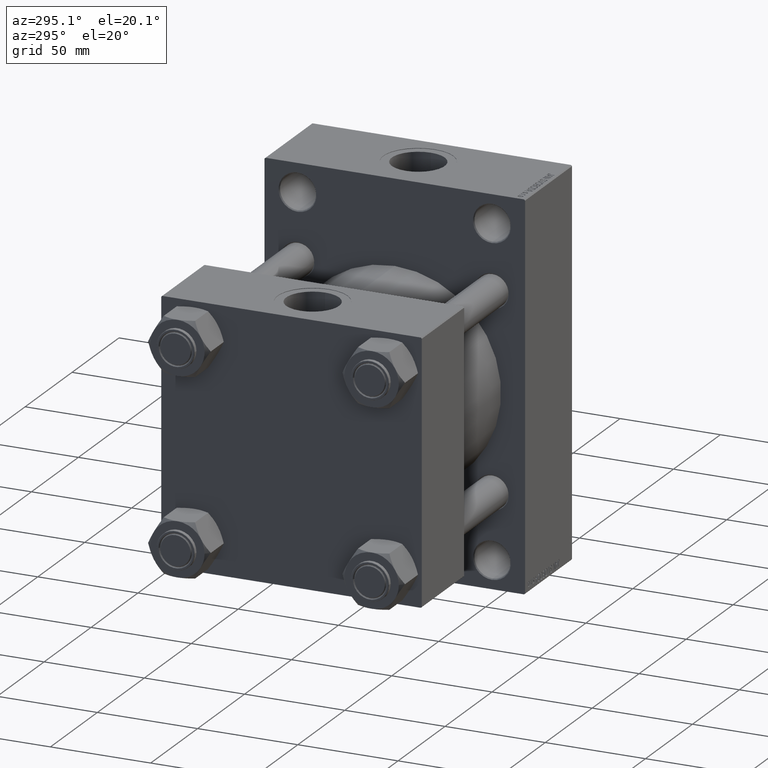
[diagram: clean part render]
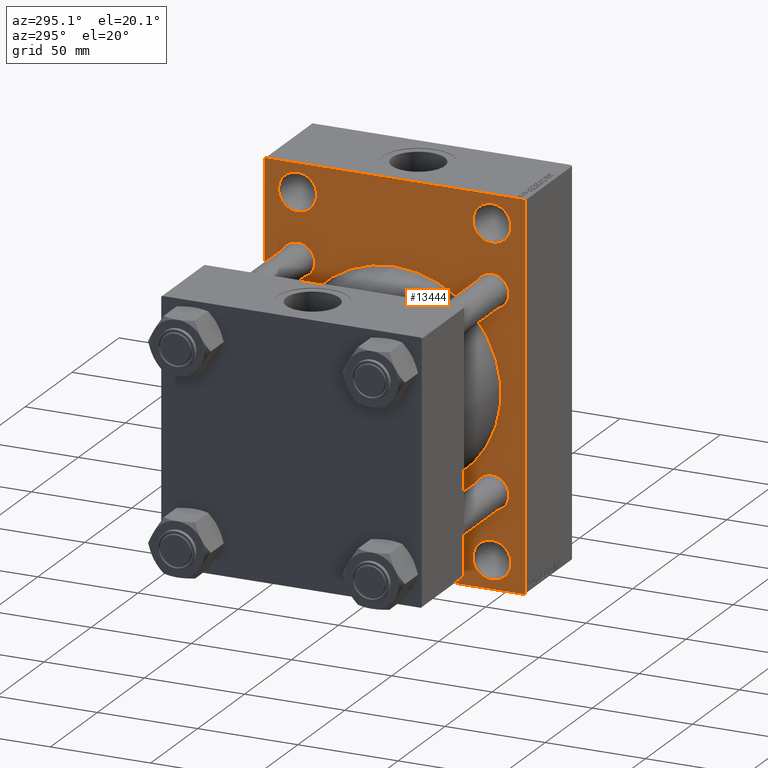
[diagram: same view with one face highlighted and labeled with its STEP entity id]
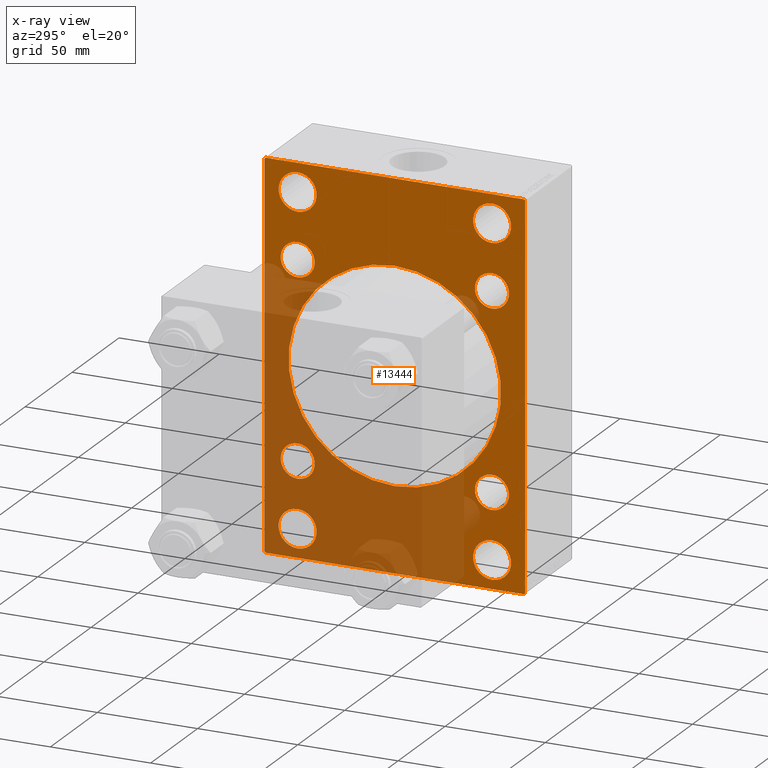
[diagram: x-ray of the same camera — body ghosted, the highlighted face saturated]
A machine part, auxiliary view. The second image highlights one B-rep face of the part: STEP entity #13444.
The next image is the same camera in x-ray: the body ghosted, the highlighted face saturated — about 43% of this face is hidden behind the body in this view.
In plain terms, the highlighted planar face has unit normal (-1, 0, 0).
Its self-contained STEP definition (entity closure, byte-faithful):
#198 = ORIENTED_EDGE ( 'NONE', *, *, #5870, .T. ) ;
#305 = CIRCLE ( 'NONE', #33439, 8.500000000000007105 ) ;
#425 = DIRECTION ( 'NONE',  ( 0.000000000000000000, -1.000000000000000000, -1.067522139062650425E-16 ) ) ;
#552 = ORIENTED_EDGE ( 'NONE', *, *, #39208, .T. ) ;
#1400 = VERTEX_POINT ( 'NONE', #17239 ) ;
#1447 = VERTEX_POINT ( 'NONE', #24719 ) ;
#1671 = FACE_BOUND ( 'NONE', #29778, .T. ) ;
#1723 = CARTESIAN_POINT ( 'NONE',  ( 110.0000000000000000, 48.50000000000000711, 90.50000000000004263 ) ) ;
#1732 = ORIENTED_EDGE ( 'NONE', *, *, #46637, .T. ) ;
#2248 = DIRECTION ( 'NONE',  ( 0.000000000000000000, 0.000000000000000000, 1.000000000000000000 ) ) ;
#2267 = LINE ( 'NONE', #16973, #31966 ) ;
#2317 = EDGE_LOOP ( 'NONE', ( #198, #7697 ) ) ;
#2442 = VERTEX_POINT ( 'NONE', #27324 ) ;
#2547 = CIRCLE ( 'NONE', #37235, 9.500000000000035527 ) ;
#3224 = EDGE_CURVE ( 'NONE', #39595, #29305, #37398, .T. ) ;
#3294 = DIRECTION ( 'NONE',  ( 0.000000000000000000, 0.000000000000000000, 1.000000000000000000 ) ) ;
#3350 = DIRECTION ( 'NONE',  ( 1.000000000000000000, -0.000000000000000000, 0.000000000000000000 ) ) ;
#3498 = ORIENTED_EDGE ( 'NONE', *, *, #43275, .T. ) ;
#3780 = CARTESIAN_POINT ( 'NONE',  ( 110.0000000000000000, -48.44999999999999574, -48.45000000000003126 ) ) ;
#4561 = DIRECTION ( 'NONE',  ( -0.000000000000000000, 0.7071067811865573427, 0.7071067811865376918 ) ) ;
#4786 = EDGE_LOOP ( 'NONE', ( #46320, #15660 ) ) ;
#5043 = DIRECTION ( 'NONE',  ( 0.000000000000000000, -0.7071067811865279218, 0.7071067811865671127 ) ) ;
#5076 = VERTEX_POINT ( 'NONE', #43194 ) ;
#5552 = AXIS2_PLACEMENT_3D ( 'NONE', #16484, #13575, #9471 ) ;
#5638 = VERTEX_POINT ( 'NONE', #25683 ) ;
#5870 = EDGE_CURVE ( 'NONE', #36031, #6565, #2547, .T. ) ;
#5988 = EDGE_CURVE ( 'NONE', #7825, #24256, #22595, .T. ) ;
#6565 = VERTEX_POINT ( 'NONE', #32444 ) ;
#6591 = DIRECTION ( 'NONE',  ( 0.000000000000000000, 0.000000000000000000, 1.000000000000000000 ) ) ;
#6609 = CARTESIAN_POINT ( 'NONE',  ( 110.0000000000000000, -64.50000000000002842, 94.99999999999997158 ) ) ;
#6708 = EDGE_CURVE ( 'NONE', #31724, #17610, #40997, .T. ) ;
#6915 = CIRCLE ( 'NONE', #25399, 53.00000000000000711 ) ;
#7167 = DIRECTION ( 'NONE',  ( 0.000000000000000000, 0.000000000000000000, 1.000000000000000000 ) ) ;
#7356 = DIRECTION ( 'NONE',  ( 0.000000000000000000, 0.000000000000000000, 1.000000000000000000 ) ) ;
#7575 = CARTESIAN_POINT ( 'NONE',  ( 110.0000000000000000, -2.602085213965210642E-15, 53.00000000000000711 ) ) ;
#7697 = ORIENTED_EDGE ( 'NONE', *, *, #21685, .T. ) ;
#7776 = VERTEX_POINT ( 'NONE', #1723 ) ;
#7825 = VERTEX_POINT ( 'NONE', #20760 ) ;
#7898 = ORIENTED_EDGE ( 'NONE', *, *, #31410, .T. ) ;
#7912 = EDGE_CURVE ( 'NONE', #2442, #18151, #39504, .T. ) ;
#8181 = CARTESIAN_POINT ( 'NONE',  ( 110.0000000000000000, -79.74999999999911893, 79.75000000000133582 ) ) ;
#8216 = EDGE_LOOP ( 'NONE', ( #33969, #552 ) ) ;
#8695 = DIRECTION ( 'NONE',  ( 1.000000000000000000, -0.000000000000000000, 0.000000000000000000 ) ) ;
#8898 = FACE_BOUND ( 'NONE', #9372, .T. ) ;
#9139 = FACE_BOUND ( 'NONE', #2317, .T. ) ;
#9243 = DIRECTION ( 'NONE',  ( 1.000000000000000000, -0.000000000000000000, 0.000000000000000000 ) ) ;
#9372 = EDGE_LOOP ( 'NONE', ( #24177, #33265 ) ) ;
#9471 = DIRECTION ( 'NONE',  ( 0.000000000000000000, 0.000000000000000000, 1.000000000000000000 ) ) ;
#9556 = DIRECTION ( 'NONE',  ( 0.000000000000000000, 0.000000000000000000, 1.000000000000000000 ) ) ;
#9633 = EDGE_CURVE ( 'NONE', #27969, #35474, #27987, .T. ) ;
#10623 = EDGE_CURVE ( 'NONE', #24256, #7825, #305, .T. ) ;
#11018 = CARTESIAN_POINT ( 'NONE',  ( 110.0000000000000000, 48.50000000000000711, -81.00000000000001421 ) ) ;
#11045 = CARTESIAN_POINT ( 'NONE',  ( 110.0000000000000000, 64.99999999999998579, -95.00000000000001421 ) ) ;
#11107 = CARTESIAN_POINT ( 'NONE',  ( 110.0000000000000000, -48.44999999999999574, 48.45000000000003126 ) ) ;
#11432 = EDGE_LOOP ( 'NONE', ( #7898, #23371 ) ) ;
#11765 = EDGE_CURVE ( 'NONE', #1400, #33826, #18303, .T. ) ;
#11973 = AXIS2_PLACEMENT_3D ( 'NONE', #30466, #41346, #33622 ) ;
#12002 = CARTESIAN_POINT ( 'NONE',  ( 110.0000000000000000, 48.45000000000000995, -39.95000000000000284 ) ) ;
#12286 = CIRCLE ( 'NONE', #23861, 8.500000000000007105 ) ;
#12555 = DIRECTION ( 'NONE',  ( 0.000000000000000000, 0.000000000000000000, 1.000000000000000000 ) ) ;
#12702 = DIRECTION ( 'NONE',  ( 1.000000000000000000, -0.000000000000000000, 0.000000000000000000 ) ) ;
#12998 = FACE_OUTER_BOUND ( 'NONE', #42912, .T. ) ;
#13315 = DIRECTION ( 'NONE',  ( -0.000000000000000000, -0.7071067811865376918, -0.7071067811865573427 ) ) ;
#13413 = EDGE_CURVE ( 'NONE', #33826, #41772, #34718, .T. ) ;
#13444 = ADVANCED_FACE ( 'NONE', ( #31081, #9139, #17082, #27710, #1671, #31315, #8898, #13465, #28167, #12998 ), #19758, .T. ) ;
#13465 = FACE_BOUND ( 'NONE', #8216, .T. ) ;
#13575 = DIRECTION ( 'NONE',  ( 1.000000000000000000, -0.000000000000000000, 0.000000000000000000 ) ) ;
#13589 = AXIS2_PLACEMENT_3D ( 'NONE', #28114, #12702, #42854 ) ;
#13635 = CIRCLE ( 'NONE', #44477, 9.500000000000035527 ) ;
#13774 = DIRECTION ( 'NONE',  ( 0.000000000000000000, 0.000000000000000000, -1.000000000000000000 ) ) ;
#13830 = CIRCLE ( 'NONE', #29257, 8.500000000000007105 ) ;
#14596 = CARTESIAN_POINT ( 'NONE',  ( 110.0000000000000000, -48.44999999999999574, 39.95000000000001705 ) ) ;
#14627 = EDGE_CURVE ( 'NONE', #22118, #19221, #2267, .T. ) ;
#14828 = ORIENTED_EDGE ( 'NONE', *, *, #41948, .F. ) ;
#15150 = EDGE_CURVE ( 'NONE', #28328, #27069, #44890, .T. ) ;
#15390 = EDGE_LOOP ( 'NONE', ( #21058, #20079 ) ) ;
#15660 = ORIENTED_EDGE ( 'NONE', *, *, #25272, .T. ) ;
#15777 = CARTESIAN_POINT ( 'NONE',  ( 110.0000000000000000, -2.602085213965210642E-15, 0.000000000000000000 ) ) ;
#16044 = AXIS2_PLACEMENT_3D ( 'NONE', #47387, #16345, #29028 ) ;
#16345 = DIRECTION ( 'NONE',  ( 1.000000000000000000, -0.000000000000000000, 0.000000000000000000 ) ) ;
#16484 = CARTESIAN_POINT ( 'NONE',  ( 110.0000000000000000, 48.45000000000000995, -48.45000000000001705 ) ) ;
#16798 = VECTOR ( 'NONE', #13315, 1000.000000000000114 ) ;
#16802 = CIRCLE ( 'NONE', #43786, 8.500000000000007105 ) ;
#16973 = CARTESIAN_POINT ( 'NONE',  ( 110.0000000000000000, 64.99999999999997158, 94.99999999999997158 ) ) ;
#17082 = FACE_BOUND ( 'NONE', #15390, .T. ) ;
#17239 = CARTESIAN_POINT ( 'NONE',  ( 110.0000000000000000, 64.50000000000001421, -95.00000000000001421 ) ) ;
#17610 = VERTEX_POINT ( 'NONE', #28272 ) ;
#17937 = CARTESIAN_POINT ( 'NONE',  ( 110.0000000000000000, 64.50000000000000000, 94.99999999999997158 ) ) ;
#18151 = VERTEX_POINT ( 'NONE', #37627 ) ;
#18282 = VERTEX_POINT ( 'NONE', #24082 ) ;
#18303 = LINE ( 'NONE', #11045, #33475 ) ;
#18712 = AXIS2_PLACEMENT_3D ( 'NONE', #32557, #21711, #39808 ) ;
#19166 = DIRECTION ( 'NONE',  ( 1.000000000000000000, -0.000000000000000000, 0.000000000000000000 ) ) ;
#19221 = VERTEX_POINT ( 'NONE', #6609 ) ;
#19723 = CARTESIAN_POINT ( 'NONE',  ( 110.0000000000000000, 64.99999999999997158, 94.50000000000000000 ) ) ;
#19758 = PLANE ( 'NONE',  #38128 ) ;
#19834 = CARTESIAN_POINT ( 'NONE',  ( 110.0000000000000000, 48.45000000000000995, 48.45000000000001705 ) ) ;
#20079 = ORIENTED_EDGE ( 'NONE', *, *, #3224, .T. ) ;
#20760 = CARTESIAN_POINT ( 'NONE',  ( 110.0000000000000000, 48.45000000000000995, -56.95000000000002416 ) ) ;
#21058 = ORIENTED_EDGE ( 'NONE', *, *, #34258, .T. ) ;
#21253 = LINE ( 'NONE', #43232, #16798 ) ;
#21685 = EDGE_CURVE ( 'NONE', #6565, #36031, #13635, .T. ) ;
#21711 = DIRECTION ( 'NONE',  ( 1.000000000000000000, -0.000000000000000000, 0.000000000000000000 ) ) ;
#21838 = CARTESIAN_POINT ( 'NONE',  ( 110.0000000000000000, -48.49999999999999289, -71.49999999999998579 ) ) ;
#21960 = CARTESIAN_POINT ( 'NONE',  ( 110.0000000000000000, 64.99999999999997158, 94.99999999999997158 ) ) ;
#22118 = VERTEX_POINT ( 'NONE', #17937 ) ;
#22428 = LINE ( 'NONE', #8181, #32982 ) ;
#22595 = CIRCLE ( 'NONE', #5552, 8.500000000000007105 ) ;
#22773 = DIRECTION ( 'NONE',  ( 0.000000000000000000, 0.000000000000000000, -1.000000000000000000 ) ) ;
#22986 = CIRCLE ( 'NONE', #44590, 8.500000000000007105 ) ;
#23258 = DIRECTION ( 'NONE',  ( 0.000000000000000000, -1.000000000000000000, 0.000000000000000000 ) ) ;
#23277 = AXIS2_PLACEMENT_3D ( 'NONE', #15777, #42078, #22773 ) ;
#23371 = ORIENTED_EDGE ( 'NONE', *, *, #7912, .T. ) ;
#23411 = ORIENTED_EDGE ( 'NONE', *, *, #42547, .T. ) ;
#23606 = CARTESIAN_POINT ( 'NONE',  ( 110.0000000000000000, 0.000000000000000000, 0.000000000000000000 ) ) ;
#23678 = CIRCLE ( 'NONE', #46064, 9.500000000000035527 ) ;
#23861 = AXIS2_PLACEMENT_3D ( 'NONE', #3780, #29100, #3294 ) ;
#24082 = CARTESIAN_POINT ( 'NONE',  ( 110.0000000000000000, -48.44999999999999574, -56.95000000000003837 ) ) ;
#24177 = ORIENTED_EDGE ( 'NONE', *, *, #10623, .T. ) ;
#24256 = VERTEX_POINT ( 'NONE', #12002 ) ;
#24525 = CARTESIAN_POINT ( 'NONE',  ( 110.0000000000000000, 48.50000000000000711, -71.49999999999998579 ) ) ;
#24550 = CARTESIAN_POINT ( 'NONE',  ( 110.0000000000000000, -79.75000000000181899, -79.74999999999739941 ) ) ;
#24719 = CARTESIAN_POINT ( 'NONE',  ( 110.0000000000000000, 48.45000000000000995, 39.95000000000000284 ) ) ;
#24994 = DIRECTION ( 'NONE',  ( 1.000000000000000000, 0.000000000000000000, 0.000000000000000000 ) ) ;
#25272 = EDGE_CURVE ( 'NONE', #1447, #38451, #22986, .T. ) ;
#25399 = AXIS2_PLACEMENT_3D ( 'NONE', #29578, #24994, #28847 ) ;
#25683 = CARTESIAN_POINT ( 'NONE',  ( 110.0000000000000000, -65.00000000000001421, 94.50000000000000000 ) ) ;
#26026 = VERTEX_POINT ( 'NONE', #44728 ) ;
#26373 = ORIENTED_EDGE ( 'NONE', *, *, #37392, .T. ) ;
#26639 = CIRCLE ( 'NONE', #43639, 9.500000000000035527 ) ;
#26853 = CARTESIAN_POINT ( 'NONE',  ( 110.0000000000000000, -64.50000000000004263, -95.00000000000002842 ) ) ;
#27069 = VERTEX_POINT ( 'NONE', #35749 ) ;
#27324 = CARTESIAN_POINT ( 'NONE',  ( 110.0000000000000000, -48.50000000000000000, 71.49999999999997158 ) ) ;
#27710 = FACE_BOUND ( 'NONE', #30597, .T. ) ;
#27969 = VERTEX_POINT ( 'NONE', #32579 ) ;
#27987 = CIRCLE ( 'NONE', #44211, 8.500000000000007105 ) ;
#28114 = CARTESIAN_POINT ( 'NONE',  ( 110.0000000000000000, 48.45000000000000995, 48.45000000000001705 ) ) ;
#28167 = FACE_BOUND ( 'NONE', #29539, .T. ) ;
#28272 = CARTESIAN_POINT ( 'NONE',  ( 110.0000000000000000, 3.888542821515762466E-15, -53.00000000000000711 ) ) ;
#28328 = VERTEX_POINT ( 'NONE', #19723 ) ;
#28484 = EDGE_CURVE ( 'NONE', #26026, #18282, #12286, .T. ) ;
#28847 = DIRECTION ( 'NONE',  ( 0.000000000000000000, 0.000000000000000000, -1.000000000000000000 ) ) ;
#29028 = DIRECTION ( 'NONE',  ( 0.000000000000000000, 0.000000000000000000, 1.000000000000000000 ) ) ;
#29100 = DIRECTION ( 'NONE',  ( 1.000000000000000000, -0.000000000000000000, 0.000000000000000000 ) ) ;
#29155 = DIRECTION ( 'NONE',  ( 0.000000000000000000, 0.000000000000000000, 1.000000000000000000 ) ) ;
#29257 = AXIS2_PLACEMENT_3D ( 'NONE', #42249, #8695, #12555 ) ;
#29305 = VERTEX_POINT ( 'NONE', #24525 ) ;
#29539 = EDGE_LOOP ( 'NONE', ( #37697, #1732 ) ) ;
#29578 = CARTESIAN_POINT ( 'NONE',  ( 110.0000000000000000, -2.602085213965210642E-15, 0.000000000000000000 ) ) ;
#29778 = EDGE_LOOP ( 'NONE', ( #45032, #34495 ) ) ;
#30466 = CARTESIAN_POINT ( 'NONE',  ( 110.0000000000000000, 48.50000000000000711, -81.00000000000001421 ) ) ;
#30494 = DIRECTION ( 'NONE',  ( 0.000000000000000000, 0.7071067811865474617, -0.7071067811865474617 ) ) ;
#30597 = EDGE_LOOP ( 'NONE', ( #26373, #3498 ) ) ;
#31081 = FACE_BOUND ( 'NONE', #11432, .T. ) ;
#31315 = FACE_BOUND ( 'NONE', #4786, .T. ) ;
#31410 = EDGE_CURVE ( 'NONE', #18151, #2442, #37851, .T. ) ;
#31724 = VERTEX_POINT ( 'NONE', #7575 ) ;
#31966 = VECTOR ( 'NONE', #23258, 1000.000000000000000 ) ;
#31996 = VECTOR ( 'NONE', #33303, 1000.000000000000000 ) ;
#32232 = CARTESIAN_POINT ( 'NONE',  ( 110.0000000000000000, -48.50000000000000000, 81.00000000000000000 ) ) ;
#32332 = DIRECTION ( 'NONE',  ( 0.000000000000000000, 0.000000000000000000, 1.000000000000000000 ) ) ;
#32385 = ORIENTED_EDGE ( 'NONE', *, *, #43577, .T. ) ;
#32403 = CARTESIAN_POINT ( 'NONE',  ( 110.0000000000000000, 48.45000000000000995, -48.45000000000001705 ) ) ;
#32444 = CARTESIAN_POINT ( 'NONE',  ( 110.0000000000000000, -48.49999999999999289, -90.50000000000005684 ) ) ;
#32557 = CARTESIAN_POINT ( 'NONE',  ( 110.0000000000000000, -48.50000000000000000, 81.00000000000000000 ) ) ;
#32579 = CARTESIAN_POINT ( 'NONE',  ( 110.0000000000000000, -48.44999999999999574, 56.95000000000003837 ) ) ;
#32982 = VECTOR ( 'NONE', #4561, 1000.000000000000114 ) ;
#33265 = ORIENTED_EDGE ( 'NONE', *, *, #5988, .T. ) ;
#33303 = DIRECTION ( 'NONE',  ( 0.000000000000000000, 7.304098846218135653E-17, -1.000000000000000000 ) ) ;
#33439 = AXIS2_PLACEMENT_3D ( 'NONE', #32403, #47146, #6591 ) ;
#33475 = VECTOR ( 'NONE', #425, 1000.000000000000000 ) ;
#33622 = DIRECTION ( 'NONE',  ( 0.000000000000000000, 0.000000000000000000, 1.000000000000000000 ) ) ;
#33636 = CARTESIAN_POINT ( 'NONE',  ( 110.0000000000000000, -48.44999999999999574, -48.45000000000003126 ) ) ;
#33826 = VERTEX_POINT ( 'NONE', #26853 ) ;
#33969 = ORIENTED_EDGE ( 'NONE', *, *, #28484, .T. ) ;
#33990 = ORIENTED_EDGE ( 'NONE', *, *, #14627, .F. ) ;
#34258 = EDGE_CURVE ( 'NONE', #29305, #39595, #26639, .T. ) ;
#34263 = VECTOR ( 'NONE', #5043, 1000.000000000000000 ) ;
#34287 = CARTESIAN_POINT ( 'NONE',  ( 110.0000000000000000, 48.50000000000000711, -90.50000000000005684 ) ) ;
#34475 = DIRECTION ( 'NONE',  ( -0.000000000000000000, 0.000000000000000000, 1.000000000000000000 ) ) ;
#34495 = ORIENTED_EDGE ( 'NONE', *, *, #45995, .T. ) ;
#34718 = LINE ( 'NONE', #24550, #34263 ) ;
#34729 = ORIENTED_EDGE ( 'NONE', *, *, #38542, .T. ) ;
#35474 = VERTEX_POINT ( 'NONE', #14596 ) ;
#35634 = DIRECTION ( 'NONE',  ( 1.000000000000000000, -0.000000000000000000, 0.000000000000000000 ) ) ;
#35724 = LINE ( 'NONE', #42510, #46827 ) ;
#35749 = CARTESIAN_POINT ( 'NONE',  ( 110.0000000000000000, 64.99999999999998579, -94.50000000000002842 ) ) ;
#35894 = EDGE_CURVE ( 'NONE', #38451, #1447, #41319, .T. ) ;
#36031 = VERTEX_POINT ( 'NONE', #21838 ) ;
#36163 = CARTESIAN_POINT ( 'NONE',  ( 110.0000000000000000, 48.50000000000000711, 81.00000000000000000 ) ) ;
#36693 = DIRECTION ( 'NONE',  ( 1.000000000000000000, -0.000000000000000000, 0.000000000000000000 ) ) ;
#36861 = CIRCLE ( 'NONE', #16044, 9.500000000000035527 ) ;
#37167 = ORIENTED_EDGE ( 'NONE', *, *, #11765, .T. ) ;
#37235 = AXIS2_PLACEMENT_3D ( 'NONE', #38681, #9243, #2248 ) ;
#37392 = EDGE_CURVE ( 'NONE', #7776, #5076, #23678, .T. ) ;
#37398 = CIRCLE ( 'NONE', #11973, 9.500000000000035527 ) ;
#37627 = CARTESIAN_POINT ( 'NONE',  ( 110.0000000000000000, -48.50000000000000000, 90.50000000000004263 ) ) ;
#37697 = ORIENTED_EDGE ( 'NONE', *, *, #6708, .T. ) ;
#37851 = CIRCLE ( 'NONE', #40152, 9.500000000000035527 ) ;
#37934 = DIRECTION ( 'NONE',  ( 0.000000000000000000, 0.000000000000000000, 1.000000000000000000 ) ) ;
#38128 = AXIS2_PLACEMENT_3D ( 'NONE', #23606, #38806, #34475 ) ;
#38165 = CARTESIAN_POINT ( 'NONE',  ( 110.0000000000000000, -65.00000000000001421, -94.50000000000002842 ) ) ;
#38232 = LINE ( 'NONE', #42336, #46123 ) ;
#38451 = VERTEX_POINT ( 'NONE', #42724 ) ;
#38542 = EDGE_CURVE ( 'NONE', #5638, #19221, #22428, .T. ) ;
#38543 = DIRECTION ( 'NONE',  ( 1.000000000000000000, -0.000000000000000000, 0.000000000000000000 ) ) ;
#38681 = CARTESIAN_POINT ( 'NONE',  ( 110.0000000000000000, -48.49999999999999289, -81.00000000000001421 ) ) ;
#38806 = DIRECTION ( 'NONE',  ( -1.000000000000000000, 0.000000000000000000, -0.000000000000000000 ) ) ;
#39208 = EDGE_CURVE ( 'NONE', #18282, #26026, #16802, .T. ) ;
#39504 = CIRCLE ( 'NONE', #18712, 9.500000000000035527 ) ;
#39595 = VERTEX_POINT ( 'NONE', #34287 ) ;
#39808 = DIRECTION ( 'NONE',  ( 0.000000000000000000, 0.000000000000000000, 1.000000000000000000 ) ) ;
#40152 = AXIS2_PLACEMENT_3D ( 'NONE', #32232, #35634, #46733 ) ;
#40458 = DIRECTION ( 'NONE',  ( 1.000000000000000000, -0.000000000000000000, 0.000000000000000000 ) ) ;
#40997 = CIRCLE ( 'NONE', #23277, 53.00000000000000711 ) ;
#41319 = CIRCLE ( 'NONE', #13589, 8.500000000000007105 ) ;
#41346 = DIRECTION ( 'NONE',  ( 1.000000000000000000, -0.000000000000000000, 0.000000000000000000 ) ) ;
#41705 = ORIENTED_EDGE ( 'NONE', *, *, #13413, .T. ) ;
#41772 = VERTEX_POINT ( 'NONE', #38165 ) ;
#41948 = EDGE_CURVE ( 'NONE', #5638, #41772, #35724, .T. ) ;
#42078 = DIRECTION ( 'NONE',  ( 1.000000000000000000, 0.000000000000000000, 0.000000000000000000 ) ) ;
#42249 = CARTESIAN_POINT ( 'NONE',  ( 110.0000000000000000, -48.44999999999999574, 48.45000000000003126 ) ) ;
#42336 = CARTESIAN_POINT ( 'NONE',  ( 110.0000000000000000, 79.74999999999998579, 79.74999999999998579 ) ) ;
#42409 = CARTESIAN_POINT ( 'NONE',  ( 110.0000000000000000, -48.49999999999999289, -81.00000000000001421 ) ) ;
#42510 = CARTESIAN_POINT ( 'NONE',  ( 110.0000000000000000, -65.00000000000001421, 94.99999999999997158 ) ) ;
#42547 = EDGE_CURVE ( 'NONE', #22118, #28328, #38232, .T. ) ;
#42724 = CARTESIAN_POINT ( 'NONE',  ( 110.0000000000000000, 48.45000000000000995, 56.95000000000002416 ) ) ;
#42854 = DIRECTION ( 'NONE',  ( 0.000000000000000000, 0.000000000000000000, 1.000000000000000000 ) ) ;
#42912 = EDGE_LOOP ( 'NONE', ( #37167, #41705, #14828, #34729, #33990, #23411, #46934, #32385 ) ) ;
#43194 = CARTESIAN_POINT ( 'NONE',  ( 110.0000000000000000, 48.50000000000000711, 71.49999999999997158 ) ) ;
#43232 = CARTESIAN_POINT ( 'NONE',  ( 110.0000000000000000, 79.75000000000090949, -79.74999999999867839 ) ) ;
#43275 = EDGE_CURVE ( 'NONE', #5076, #7776, #36861, .T. ) ;
#43577 = EDGE_CURVE ( 'NONE', #27069, #1400, #21253, .T. ) ;
#43639 = AXIS2_PLACEMENT_3D ( 'NONE', #11018, #40458, #7167 ) ;
#43786 = AXIS2_PLACEMENT_3D ( 'NONE', #33636, #19166, #7356 ) ;
#44211 = AXIS2_PLACEMENT_3D ( 'NONE', #11107, #36693, #32332 ) ;
#44477 = AXIS2_PLACEMENT_3D ( 'NONE', #42409, #38543, #9556 ) ;
#44590 = AXIS2_PLACEMENT_3D ( 'NONE', #19834, #45656, #37934 ) ;
#44728 = CARTESIAN_POINT ( 'NONE',  ( 110.0000000000000000, -48.44999999999999574, -39.95000000000001705 ) ) ;
#44890 = LINE ( 'NONE', #21960, #31996 ) ;
#45032 = ORIENTED_EDGE ( 'NONE', *, *, #9633, .T. ) ;
#45656 = DIRECTION ( 'NONE',  ( 1.000000000000000000, -0.000000000000000000, 0.000000000000000000 ) ) ;
#45995 = EDGE_CURVE ( 'NONE', #35474, #27969, #13830, .T. ) ;
#46064 = AXIS2_PLACEMENT_3D ( 'NONE', #36163, #3350, #29155 ) ;
#46123 = VECTOR ( 'NONE', #30494, 1000.000000000000114 ) ;
#46320 = ORIENTED_EDGE ( 'NONE', *, *, #35894, .T. ) ;
#46637 = EDGE_CURVE ( 'NONE', #17610, #31724, #6915, .T. ) ;
#46733 = DIRECTION ( 'NONE',  ( 0.000000000000000000, 0.000000000000000000, 1.000000000000000000 ) ) ;
#46827 = VECTOR ( 'NONE', #13774, 1000.000000000000000 ) ;
#46934 = ORIENTED_EDGE ( 'NONE', *, *, #15150, .T. ) ;
#47146 = DIRECTION ( 'NONE',  ( 1.000000000000000000, -0.000000000000000000, 0.000000000000000000 ) ) ;
#47387 = CARTESIAN_POINT ( 'NONE',  ( 110.0000000000000000, 48.50000000000000711, 81.00000000000000000 ) ) ;